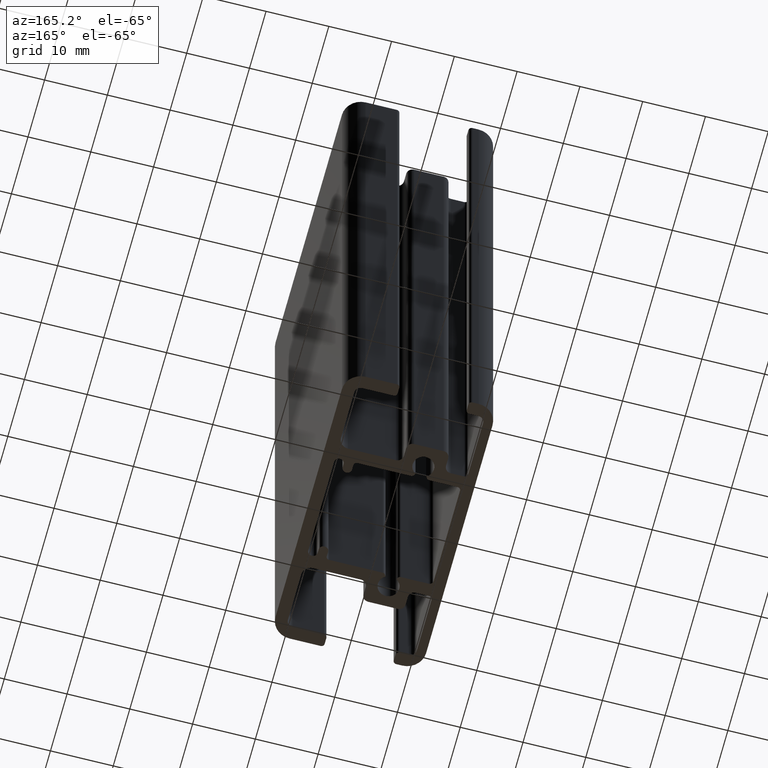
[diagram: clean part render]
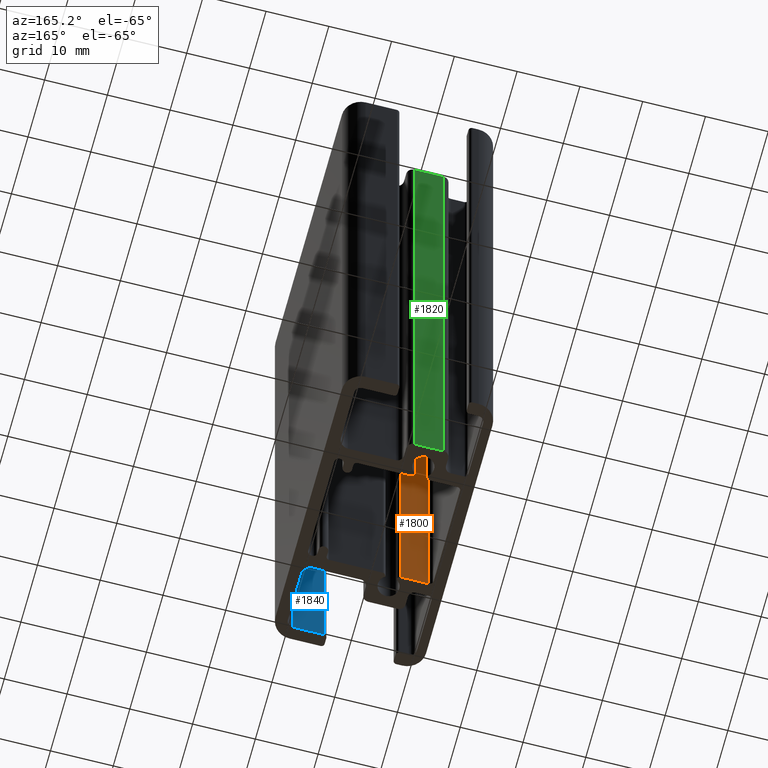
[diagram: same view with three faces highlighted in distinct colors, each labeled with its STEP entity id]
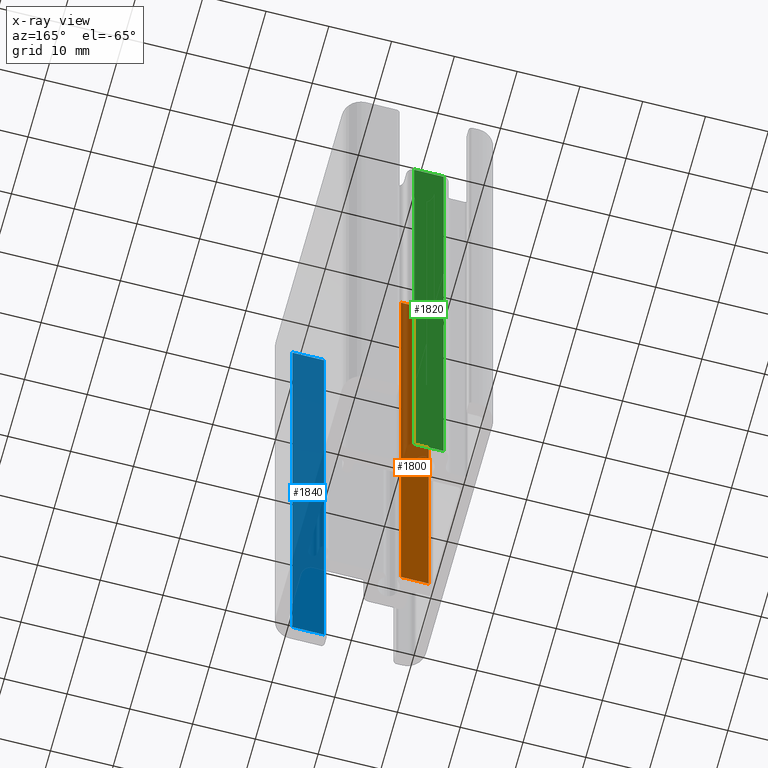
[diagram: x-ray of the same camera — body ghosted, the three highlighted faces saturated]
A machine part, auxiliary view with three faces highlighted in distinct colors.
The next image is the same camera in x-ray (body ghosted, the three faces saturated) — at least one of them is partly hidden behind the body in this view.
Their STEP definitions:

[orange] entity #1800 — the highlighted planar face has unit normal (0, -1, 0).
#30=PLANE('',#1924);
#92=FACE_OUTER_BOUND('',#186,.T.);
#186=EDGE_LOOP('',(#1283,#1284,#1285,#1286));
#308=LINE('',#2777,#492);
#309=LINE('',#2781,#493);
#310=LINE('',#2783,#494);
#311=LINE('',#2784,#495);
#492=VECTOR('',#2218,100.);
#493=VECTOR('',#2223,4.42826477615781);
#494=VECTOR('',#2224,100.);
#495=VECTOR('',#2225,4.42826477615781);
#769=VERTEX_POINT('',#2774);
#770=VERTEX_POINT('',#2776);
#771=VERTEX_POINT('',#2780);
#772=VERTEX_POINT('',#2782);
#979=EDGE_CURVE('',#769,#770,#308,.T.);
#981=EDGE_CURVE('',#771,#769,#309,.T.);
#982=EDGE_CURVE('',#771,#772,#310,.T.);
#983=EDGE_CURVE('',#770,#772,#311,.T.);
#1283=ORIENTED_EDGE('',*,*,#981,.F.);
#1284=ORIENTED_EDGE('',*,*,#982,.T.);
#1285=ORIENTED_EDGE('',*,*,#983,.F.);
#1286=ORIENTED_EDGE('',*,*,#979,.F.);
#1800=ADVANCED_FACE('',(#92),#30,.F.);
#1924=AXIS2_PLACEMENT_3D('',#2779,#2221,#2222);
#2218=DIRECTION('',(0.,0.,1.));
#2221=DIRECTION('center_axis',(0.,-1.,0.));
#2222=DIRECTION('ref_axis',(1.,0.,0.));
#2223=DIRECTION('',(1.,0.,0.));
#2224=DIRECTION('',(0.,0.,1.));
#2225=DIRECTION('',(-1.,0.,0.));
#2774=CARTESIAN_POINT('',(-4.84329865399872,-8.40807167985903,0.));
#2776=CARTESIAN_POINT('',(-4.84329865399872,-8.40807167985903,100.));
#2777=CARTESIAN_POINT('',(-4.84329865399872,-8.40807167985903,0.));
#2779=CARTESIAN_POINT('Origin',(-9.27156343015653,-8.40807167985903,0.));
#2780=CARTESIAN_POINT('',(-9.27156343015653,-8.40807167985903,0.));
#2781=CARTESIAN_POINT('',(-4.56219178054872,-8.40807167985903,0.));
#2782=CARTESIAN_POINT('',(-9.27156343015653,-8.40807167985903,100.));
#2783=CARTESIAN_POINT('',(-9.27156343015653,-8.40807167985903,0.));
#2784=CARTESIAN_POINT('',(-4.56219178054872,-8.40807167985903,100.));

[blue] entity #1840 — the highlighted planar face has unit normal (0, 1, 0).
#50=PLANE('',#2004);
#132=FACE_OUTER_BOUND('',#226,.T.);
#226=EDGE_LOOP('',(#1443,#1444,#1445,#1446));
#388=LINE('',#3018,#572);
#389=LINE('',#3021,#573);
#390=LINE('',#3023,#574);
#391=LINE('',#3024,#575);
#572=VECTOR('',#2460,100.);
#573=VECTOR('',#2463,5.01210931921154);
#574=VECTOR('',#2464,5.01210931921154);
#575=VECTOR('',#2465,100.);
#849=VERTEX_POINT('',#3014);
#850=VERTEX_POINT('',#3016);
#851=VERTEX_POINT('',#3020);
#852=VERTEX_POINT('',#3022);
#1100=EDGE_CURVE('',#849,#850,#388,.T.);
#1101=EDGE_CURVE('',#849,#851,#389,.T.);
#1102=EDGE_CURVE('',#852,#850,#390,.T.);
#1103=EDGE_CURVE('',#851,#852,#391,.T.);
#1443=ORIENTED_EDGE('',*,*,#1101,.F.);
#1444=ORIENTED_EDGE('',*,*,#1100,.T.);
#1445=ORIENTED_EDGE('',*,*,#1102,.F.);
#1446=ORIENTED_EDGE('',*,*,#1103,.F.);
#1840=ADVANCED_FACE('',(#132),#50,.T.);
#2004=AXIS2_PLACEMENT_3D('',#3019,#2461,#2462);
#2460=DIRECTION('',(0.,0.,1.));
#2461=DIRECTION('center_axis',(3.10111399309968E-14,1.,0.));
#2462=DIRECTION('ref_axis',(-1.,3.09086090055644E-14,0.));
#2463=DIRECTION('',(1.,-3.10111399309968E-14,0.));
#2464=DIRECTION('',(-1.,3.10111399309968E-14,0.));
#2465=DIRECTION('',(0.,0.,1.));
#3014=CARTESIAN_POINT('',(4.11195964890514,-20.9001905564621,0.));
#3016=CARTESIAN_POINT('',(4.11195964890514,-20.9001905564621,100.));
#3018=CARTESIAN_POINT('',(4.11195964890514,-20.9001905564621,0.));
#3019=CARTESIAN_POINT('Origin',(9.12406896811668,-20.9001905564623,0.));
#3020=CARTESIAN_POINT('',(9.12406896811668,-20.9001905564623,0.));
#3021=CARTESIAN_POINT('',(4.11195964890514,-20.9001905564621,0.));
#3022=CARTESIAN_POINT('',(9.12406896811668,-20.9001905564623,100.));
#3023=CARTESIAN_POINT('',(4.11195964890514,-20.9001905564621,100.));
#3024=CARTESIAN_POINT('',(9.12406896811668,-20.9001905564623,0.));

[green] entity #1820 — the highlighted planar face has unit normal (0, 1, 0).
#40=PLANE('',#1964);
#112=FACE_OUTER_BOUND('',#206,.T.);
#206=EDGE_LOOP('',(#1363,#1364,#1365,#1366));
#348=LINE('',#2898,#532);
#349=LINE('',#2901,#533);
#350=LINE('',#2903,#534);
#351=LINE('',#2904,#535);
#532=VECTOR('',#2340,100.);
#533=VECTOR('',#2343,4.69999999999997);
#534=VECTOR('',#2344,4.69999999999997);
#535=VECTOR('',#2345,100.);
#809=VERTEX_POINT('',#2894);
#810=VERTEX_POINT('',#2896);
#811=VERTEX_POINT('',#2900);
#812=VERTEX_POINT('',#2902);
#1040=EDGE_CURVE('',#809,#810,#348,.T.);
#1041=EDGE_CURVE('',#809,#811,#349,.T.);
#1042=EDGE_CURVE('',#812,#810,#350,.T.);
#1043=EDGE_CURVE('',#811,#812,#351,.T.);
#1363=ORIENTED_EDGE('',*,*,#1041,.F.);
#1364=ORIENTED_EDGE('',*,*,#1040,.T.);
#1365=ORIENTED_EDGE('',*,*,#1042,.F.);
#1366=ORIENTED_EDGE('',*,*,#1043,.F.);
#1820=ADVANCED_FACE('',(#112),#40,.T.);
#1964=AXIS2_PLACEMENT_3D('',#2899,#2341,#2342);
#2340=DIRECTION('',(0.,0.,1.));
#2341=DIRECTION('center_axis',(0.,1.,0.));
#2342=DIRECTION('ref_axis',(-1.,0.,0.));
#2343=DIRECTION('',(1.,0.,0.));
#2344=DIRECTION('',(-1.,0.,0.));
#2345=DIRECTION('',(0.,0.,1.));
#2894=CARTESIAN_POINT('',(-5.73794162705142,13.9738306329657,0.));
#2896=CARTESIAN_POINT('',(-5.73794162705142,13.9738306329657,100.));
#2898=CARTESIAN_POINT('',(-5.73794162705142,13.9738306329657,0.));
#2899=CARTESIAN_POINT('Origin',(-1.03794162705145,13.9738306329657,0.));
#2900=CARTESIAN_POINT('',(-1.03794162705145,13.9738306329657,0.));
#2901=CARTESIAN_POINT('',(-5.73794162705142,13.9738306329657,0.));
#2902=CARTESIAN_POINT('',(-1.03794162705145,13.9738306329657,100.));
#2903=CARTESIAN_POINT('',(-5.73794162705142,13.9738306329657,100.));
#2904=CARTESIAN_POINT('',(-1.03794162705145,13.9738306329657,0.));